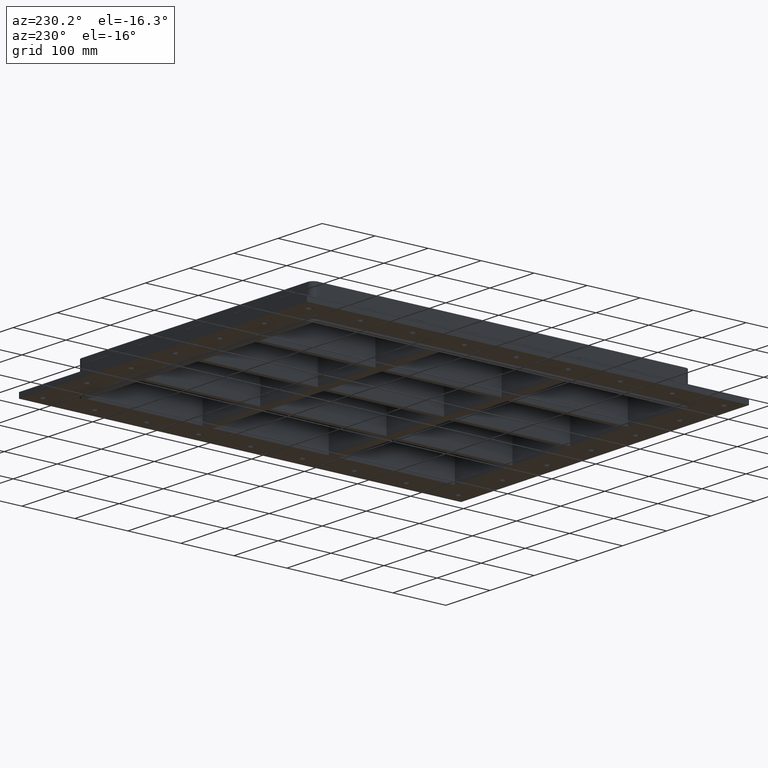
[diagram: clean part render]
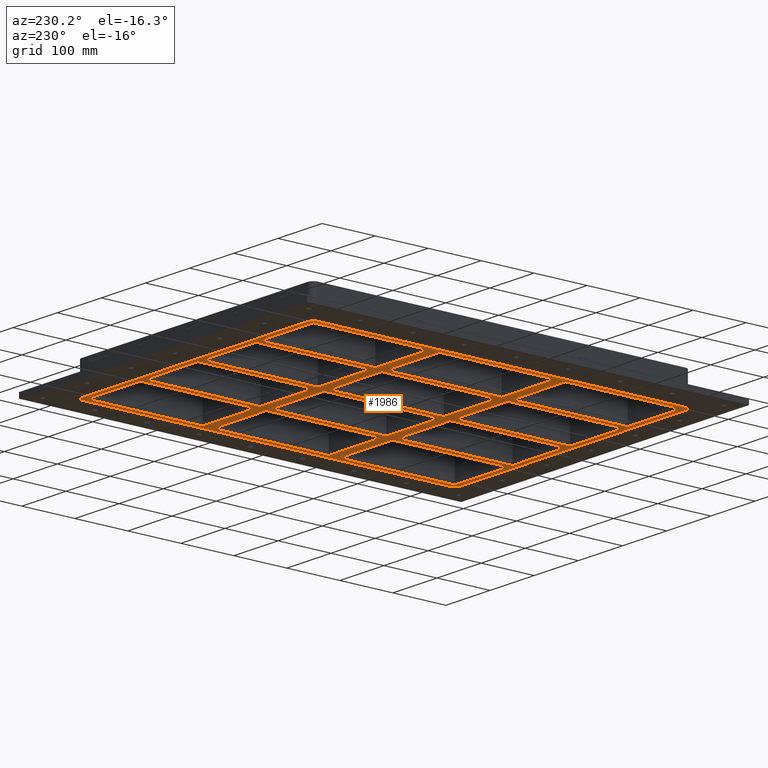
[diagram: same view with one face highlighted and labeled with its STEP entity id]
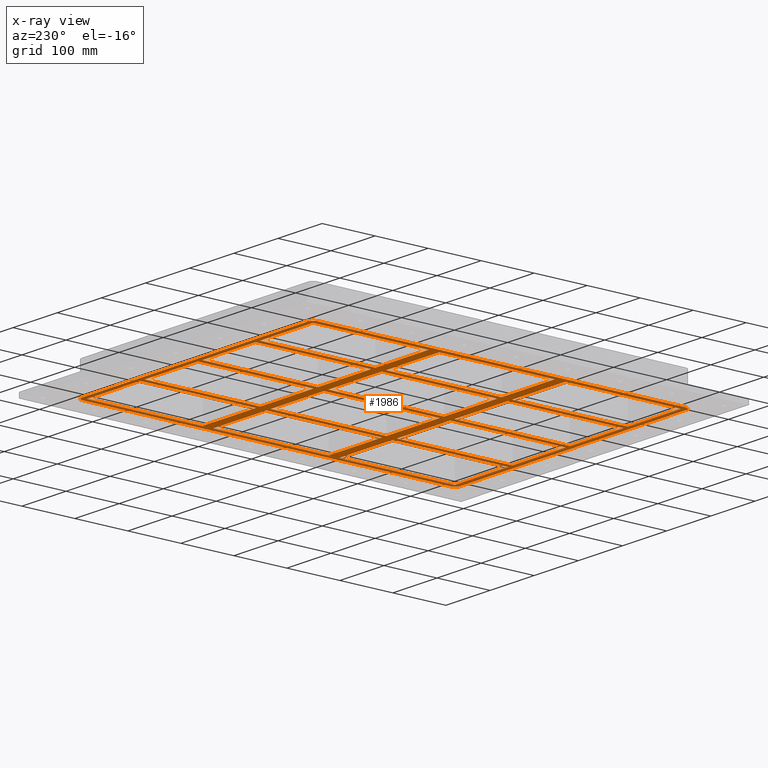
[diagram: x-ray of the same camera — body ghosted, the highlighted face saturated]
A machine part, auxiliary view. The second image highlights one B-rep face of the part: STEP entity #1986.
The next image is the same camera in x-ray: the body ghosted, the highlighted face saturated — about 0% of this face is hidden behind the body in this view.
In plain terms, the highlighted planar face has unit normal (0, 0, 1).
Its self-contained STEP definition (entity closure, byte-faithful):
#1314=CARTESIAN_POINT('',(256.00000000000011,-356.99999999999994,-30.0));
#1315=VERTEX_POINT('',#1314);
#1322=CARTESIAN_POINT('',(266.00000000000011,-346.99999999999994,-30.0));
#1323=VERTEX_POINT('',#1322);
#1324=CARTESIAN_POINT('',(256.00000000000011,-346.99999999999994,-30.0));
#1325=DIRECTION('',(0.0,0.0,1.0));
#1326=DIRECTION('',(0.707106781186547,-0.707106781186547,0.0));
#1327=AXIS2_PLACEMENT_3D('',#1324,#1325,#1326);
#1328=CIRCLE('',#1327,9.999999999999998);
#1329=EDGE_CURVE('',#1315,#1323,#1328,.T.);
#1378=CARTESIAN_POINT('',(-255.99999999999969,-356.99999999999994,-30.0));
#1379=VERTEX_POINT('',#1378);
#1386=CARTESIAN_POINT('',(256.00000000000006,-356.99999999999994,-30.0));
#1387=DIRECTION('',(-1.0,0.0,0.0));
#1388=VECTOR('',#1387,511.99999999999977);
#1389=LINE('',#1386,#1388);
#1390=EDGE_CURVE('',#1315,#1379,#1389,.T.);
#1426=CARTESIAN_POINT('',(-265.99999999999972,-346.99999999999989,-30.0));
#1427=VERTEX_POINT('',#1426);
#1434=CARTESIAN_POINT('',(-255.99999999999969,-346.99999999999989,-30.0));
#1435=DIRECTION('',(0.0,0.0,1.0));
#1436=DIRECTION('',(-0.707106781186547,-0.707106781186547,0.0));
#1437=AXIS2_PLACEMENT_3D('',#1434,#1435,#1436);
#1438=CIRCLE('',#1437,9.999999999999998);
#1439=EDGE_CURVE('',#1427,#1379,#1438,.T.);
#1476=CARTESIAN_POINT('',(-266.00000000000011,347.00000000000017,-30.0));
#1477=VERTEX_POINT('',#1476);
#1484=CARTESIAN_POINT('',(-265.99999999999972,-346.99999999999983,-30.0));
#1485=DIRECTION('',(0.0,1.0,0.0));
#1486=VECTOR('',#1485,694.0);
#1487=LINE('',#1484,#1486);
#1488=EDGE_CURVE('',#1427,#1477,#1487,.T.);
#1524=CARTESIAN_POINT('',(-256.00000000000006,357.00000000000017,-30.0));
#1525=VERTEX_POINT('',#1524);
#1532=CARTESIAN_POINT('',(-256.00000000000011,347.00000000000017,-30.0));
#1533=DIRECTION('',(0.0,0.0,1.0));
#1534=DIRECTION('',(-0.707106781186547,0.707106781186547,0.0));
#1535=AXIS2_PLACEMENT_3D('',#1532,#1533,#1534);
#1536=CIRCLE('',#1535,9.999999999999998);
#1537=EDGE_CURVE('',#1525,#1477,#1536,.T.);
#1543=CARTESIAN_POINT('',(6.843108E-014,1.228338E-013,-30.0));
#1544=DIRECTION('',(0.0,0.0,1.0));
#1545=DIRECTION('',(1.0,0.0,0.0));
#1546=AXIS2_PLACEMENT_3D('',#1543,#1544,#1545);
#1547=PLANE('',#1546);
#1548=ORIENTED_EDGE('',*,*,#1329,.F.);
#1549=ORIENTED_EDGE('',*,*,#1390,.T.);
#1550=ORIENTED_EDGE('',*,*,#1439,.F.);
#1551=ORIENTED_EDGE('',*,*,#1488,.T.);
#1552=ORIENTED_EDGE('',*,*,#1537,.F.);
#1553=CARTESIAN_POINT('',(255.99999999999997,357.00000000000011,-30.0));
#1554=VERTEX_POINT('',#1553);
#1555=CARTESIAN_POINT('',(-256.0,357.00000000000017,-30.0));
#1556=DIRECTION('',(1.0,0.0,0.0));
#1557=VECTOR('',#1556,512.0);
#1558=LINE('',#1555,#1557);
#1559=EDGE_CURVE('',#1525,#1554,#1558,.T.);
#1560=ORIENTED_EDGE('',*,*,#1559,.T.);
#1561=CARTESIAN_POINT('',(266.0,347.00000000000011,-30.0));
#1562=VERTEX_POINT('',#1561);
#1563=CARTESIAN_POINT('',(255.99999999999997,347.00000000000011,-30.0));
#1564=DIRECTION('',(0.0,0.0,1.0));
#1565=DIRECTION('',(0.707106781186547,0.707106781186547,0.0));
#1566=AXIS2_PLACEMENT_3D('',#1563,#1564,#1565);
#1567=CIRCLE('',#1566,9.999999999999998);
#1568=EDGE_CURVE('',#1562,#1554,#1567,.T.);
#1569=ORIENTED_EDGE('',*,*,#1568,.F.);
#1570=CARTESIAN_POINT('',(266.0,347.00000000000006,-30.0));
#1571=DIRECTION('',(0.0,-1.0,0.0));
#1572=VECTOR('',#1571,694.0);
#1573=LINE('',#1570,#1572);
#1574=EDGE_CURVE('',#1562,#1323,#1573,.T.);
#1575=ORIENTED_EDGE('',*,*,#1574,.T.);
#1576=EDGE_LOOP('',(#1548,#1549,#1550,#1551,#1552,#1560,#1569,#1575));
#1577=FACE_OUTER_BOUND('',#1576,.T.);
#1578=CARTESIAN_POINT('',(135.49999999999989,347.00000000000017,-30.0));
#1579=VERTEX_POINT('',#1578);
#1580=CARTESIAN_POINT('',(135.49999999999994,129.00000000000011,-30.0));
#1581=VERTEX_POINT('',#1580);
#1582=CARTESIAN_POINT('',(135.49999999999989,347.00000000000023,-30.0));
#1583=DIRECTION('',(0.0,-1.0,0.0));
#1584=VECTOR('',#1583,218.00000000000011);
#1585=LINE('',#1582,#1584);
#1586=EDGE_CURVE('',#1579,#1581,#1585,.T.);
#1587=ORIENTED_EDGE('',*,*,#1586,.T.);
#1588=CARTESIAN_POINT('',(255.99999999999994,129.00000000000011,-30.0));
#1589=VERTEX_POINT('',#1588);
#1590=CARTESIAN_POINT('',(135.49999999999994,129.00000000000011,-30.0));
#1591=DIRECTION('',(1.0,0.0,0.0));
#1592=VECTOR('',#1591,120.5);
#1593=LINE('',#1590,#1592);
#1594=EDGE_CURVE('',#1581,#1589,#1593,.T.);
#1595=ORIENTED_EDGE('',*,*,#1594,.T.);
#1596=CARTESIAN_POINT('',(255.99999999999991,347.00000000000017,-30.0));
#1597=VERTEX_POINT('',#1596);
#1598=CARTESIAN_POINT('',(255.99999999999994,129.00000000000014,-30.0));
#1599=DIRECTION('',(0.0,1.0,0.0));
#1600=VECTOR('',#1599,218.00000000000003);
#1601=LINE('',#1598,#1600);
#1602=EDGE_CURVE('',#1589,#1597,#1601,.T.);
#1603=ORIENTED_EDGE('',*,*,#1602,.T.);
#1604=CARTESIAN_POINT('',(255.99999999999989,347.00000000000017,-30.0));
#1605=DIRECTION('',(-1.0,0.0,0.0));
#1606=VECTOR('',#1605,120.5);
#1607=LINE('',#1604,#1606);
#1608=EDGE_CURVE('',#1597,#1579,#1607,.T.);
#1609=ORIENTED_EDGE('',*,*,#1608,.T.);
#1610=EDGE_LOOP('',(#1587,#1595,#1603,#1609));
#1611=FACE_BOUND('',#1610,.T.);
#1612=CARTESIAN_POINT('',(135.50000000000003,109.00000000000013,-30.0));
#1613=VERTEX_POINT('',#1612);
#1614=CARTESIAN_POINT('',(135.50000000000009,-108.99999999999989,-30.0));
#1615=VERTEX_POINT('',#1614);
#1616=CARTESIAN_POINT('',(135.50000000000003,109.00000000000011,-30.0));
#1617=DIRECTION('',(0.0,-1.0,0.0));
#1618=VECTOR('',#1617,218.0);
#1619=LINE('',#1616,#1618);
#1620=EDGE_CURVE('',#1613,#1615,#1619,.T.);
#1621=ORIENTED_EDGE('',*,*,#1620,.T.);
#1622=CARTESIAN_POINT('',(256.00000000000011,-108.99999999999989,-30.0));
#1623=VERTEX_POINT('',#1622);
#1624=CARTESIAN_POINT('',(135.50000000000011,-108.99999999999989,-30.0));
#1625=DIRECTION('',(1.0,0.0,0.0));
#1626=VECTOR('',#1625,120.5);
#1627=LINE('',#1624,#1626);
#1628=EDGE_CURVE('',#1615,#1623,#1627,.T.);
#1629=ORIENTED_EDGE('',*,*,#1628,.T.);
#1630=CARTESIAN_POINT('',(256.00000000000006,109.00000000000013,-30.0));
#1631=VERTEX_POINT('',#1630);
#1632=CARTESIAN_POINT('',(256.00000000000011,-108.99999999999986,-30.0));
#1633=DIRECTION('',(0.0,1.0,0.0));
#1634=VECTOR('',#1633,218.0);
#1635=LINE('',#1632,#1634);
#1636=EDGE_CURVE('',#1623,#1631,#1635,.T.);
#1637=ORIENTED_EDGE('',*,*,#1636,.T.);
#1638=CARTESIAN_POINT('',(256.00000000000006,109.00000000000013,-30.0));
#1639=DIRECTION('',(-1.0,0.0,0.0));
#1640=VECTOR('',#1639,120.50000000000006);
#1641=LINE('',#1638,#1640);
#1642=EDGE_CURVE('',#1631,#1613,#1641,.T.);
#1643=ORIENTED_EDGE('',*,*,#1642,.T.);
#1644=EDGE_LOOP('',(#1621,#1629,#1637,#1643));
#1645=FACE_BOUND('',#1644,.T.);
#1646=CARTESIAN_POINT('',(135.50000000000017,-128.99999999999989,-30.0));
#1647=VERTEX_POINT('',#1646);
#1648=CARTESIAN_POINT('',(135.50000000000023,-346.99999999999989,-30.0));
#1649=VERTEX_POINT('',#1648);
#1650=CARTESIAN_POINT('',(135.50000000000014,-128.99999999999989,-30.0));
#1651=DIRECTION('',(0.0,-1.0,0.0));
#1652=VECTOR('',#1651,218.0);
#1653=LINE('',#1650,#1652);
#1654=EDGE_CURVE('',#1647,#1649,#1653,.T.);
#1655=ORIENTED_EDGE('',*,*,#1654,.T.);
#1656=CARTESIAN_POINT('',(256.00000000000023,-346.99999999999989,-30.0));
#1657=VERTEX_POINT('',#1656);
#1658=CARTESIAN_POINT('',(135.50000000000023,-346.99999999999989,-30.0));
#1659=DIRECTION('',(1.0,0.0,0.0));
#1660=VECTOR('',#1659,120.5);
#1661=LINE('',#1658,#1660);
#1662=EDGE_CURVE('',#1649,#1657,#1661,.T.);
#1663=ORIENTED_EDGE('',*,*,#1662,.T.);
#1664=CARTESIAN_POINT('',(256.00000000000017,-128.99999999999989,-30.0));
#1665=VERTEX_POINT('',#1664);
#1666=CARTESIAN_POINT('',(256.00000000000023,-346.99999999999989,-30.0));
#1667=DIRECTION('',(0.0,1.0,0.0));
#1668=VECTOR('',#1667,218.0);
#1669=LINE('',#1666,#1668);
#1670=EDGE_CURVE('',#1657,#1665,#1669,.T.);
#1671=ORIENTED_EDGE('',*,*,#1670,.T.);
#1672=CARTESIAN_POINT('',(256.00000000000017,-128.99999999999989,-30.0));
#1673=DIRECTION('',(-1.0,0.0,0.0));
#1674=VECTOR('',#1673,120.5);
#1675=LINE('',#1672,#1674);
#1676=EDGE_CURVE('',#1665,#1647,#1675,.T.);
#1677=ORIENTED_EDGE('',*,*,#1676,.T.);
#1678=EDGE_LOOP('',(#1655,#1663,#1671,#1677));
#1679=FACE_BOUND('',#1678,.T.);
#1680=CARTESIAN_POINT('',(4.999999999999869,347.00000000000017,-30.0));
#1681=VERTEX_POINT('',#1680);
#1682=CARTESIAN_POINT('',(4.999999999999941,129.00000000000011,-30.0));
#1683=VERTEX_POINT('',#1682);
#1684=CARTESIAN_POINT('',(4.999999999999869,347.00000000000017,-30.0));
#1685=DIRECTION('',(0.0,-1.0,0.0));
#1686=VECTOR('',#1685,218.00000000000006);
#1687=LINE('',#1684,#1686);
#1688=EDGE_CURVE('',#1681,#1683,#1687,.T.);
#1689=ORIENTED_EDGE('',*,*,#1688,.T.);
#1690=CARTESIAN_POINT('',(125.49999999999996,129.00000000000011,-30.0));
#1691=VERTEX_POINT('',#1690);
#1692=CARTESIAN_POINT('',(4.999999999999943,129.00000000000011,-30.0));
#1693=DIRECTION('',(1.0,0.0,0.0));
#1694=VECTOR('',#1693,120.50000000000001);
#1695=LINE('',#1692,#1694);
#1696=EDGE_CURVE('',#1683,#1691,#1695,.T.);
#1697=ORIENTED_EDGE('',*,*,#1696,.T.);
#1698=CARTESIAN_POINT('',(125.49999999999991,347.00000000000017,-30.0));
#1699=VERTEX_POINT('',#1698);
#1700=CARTESIAN_POINT('',(125.49999999999996,129.00000000000014,-30.0));
#1701=DIRECTION('',(0.0,1.0,0.0));
#1702=VECTOR('',#1701,218.00000000000003);
#1703=LINE('',#1700,#1702);
#1704=EDGE_CURVE('',#1691,#1699,#1703,.T.);
#1705=ORIENTED_EDGE('',*,*,#1704,.T.);
#1706=CARTESIAN_POINT('',(125.49999999999993,347.00000000000017,-30.0));
#1707=DIRECTION('',(-1.0,0.0,0.0));
#1708=VECTOR('',#1707,120.50000000000006);
#1709=LINE('',#1706,#1708);
#1710=EDGE_CURVE('',#1699,#1681,#1709,.T.);
#1711=ORIENTED_EDGE('',*,*,#1710,.T.);
#1712=EDGE_LOOP('',(#1689,#1697,#1705,#1711));
#1713=FACE_BOUND('',#1712,.T.);
#1714=CARTESIAN_POINT('',(4.999999999999976,109.00000000000013,-30.0));
#1715=VERTEX_POINT('',#1714);
#1716=CARTESIAN_POINT('',(5.000000000000048,-108.99999999999989,-30.0));
#1717=VERTEX_POINT('',#1716);
#1718=CARTESIAN_POINT('',(4.999999999999977,109.00000000000011,-30.0));
#1719=DIRECTION('',(0.0,-1.0,0.0));
#1720=VECTOR('',#1719,218.0);
#1721=LINE('',#1718,#1720);
#1722=EDGE_CURVE('',#1715,#1717,#1721,.T.);
#1723=ORIENTED_EDGE('',*,*,#1722,.T.);
#1724=CARTESIAN_POINT('',(125.50000000000006,-108.99999999999989,-30.0));
#1725=VERTEX_POINT('',#1724);
#1726=CARTESIAN_POINT('',(5.000000000000043,-108.99999999999989,-30.0));
#1727=DIRECTION('',(1.0,0.0,0.0));
#1728=VECTOR('',#1727,120.50000000000001);
#1729=LINE('',#1726,#1728);
#1730=EDGE_CURVE('',#1717,#1725,#1729,.T.);
#1731=ORIENTED_EDGE('',*,*,#1730,.T.);
#1732=CARTESIAN_POINT('',(125.50000000000003,109.00000000000013,-30.0));
#1733=VERTEX_POINT('',#1732);
#1734=CARTESIAN_POINT('',(125.50000000000007,-108.99999999999986,-30.0));
#1735=DIRECTION('',(0.0,1.0,0.0));
#1736=VECTOR('',#1735,218.0);
#1737=LINE('',#1734,#1736);
#1738=EDGE_CURVE('',#1725,#1733,#1737,.T.);
#1739=ORIENTED_EDGE('',*,*,#1738,.T.);
#1740=CARTESIAN_POINT('',(125.50000000000003,109.00000000000013,-30.0));
#1741=DIRECTION('',(-1.0,0.0,0.0));
#1742=VECTOR('',#1741,120.50000000000006);
#1743=LINE('',#1740,#1742);
#1744=EDGE_CURVE('',#1733,#1715,#1743,.T.);
#1745=ORIENTED_EDGE('',*,*,#1744,.T.);
#1746=EDGE_LOOP('',(#1723,#1731,#1739,#1745));
#1747=FACE_BOUND('',#1746,.T.);
#1748=CARTESIAN_POINT('',(5.000000000000119,-128.99999999999989,-30.0));
#1749=VERTEX_POINT('',#1748);
#1750=CARTESIAN_POINT('',(5.00000000000019,-346.99999999999989,-30.0));
#1751=VERTEX_POINT('',#1750);
#1752=CARTESIAN_POINT('',(5.000000000000119,-128.99999999999989,-30.0));
#1753=DIRECTION('',(0.0,-1.0,0.0));
#1754=VECTOR('',#1753,218.0);
#1755=LINE('',#1752,#1754);
#1756=EDGE_CURVE('',#1749,#1751,#1755,.T.);
#1757=ORIENTED_EDGE('',*,*,#1756,.T.);
#1758=CARTESIAN_POINT('',(125.5000000000002,-346.99999999999989,-30.0));
#1759=VERTEX_POINT('',#1758);
#1760=CARTESIAN_POINT('',(5.000000000000185,-346.99999999999989,-30.0));
#1761=DIRECTION('',(1.0,0.0,0.0));
#1762=VECTOR('',#1761,120.50000000000001);
#1763=LINE('',#1760,#1762);
#1764=EDGE_CURVE('',#1751,#1759,#1763,.T.);
#1765=ORIENTED_EDGE('',*,*,#1764,.T.);
#1766=CARTESIAN_POINT('',(125.50000000000017,-128.99999999999989,-30.0));
#1767=VERTEX_POINT('',#1766);
#1768=CARTESIAN_POINT('',(125.50000000000018,-346.99999999999989,-30.0));
#1769=DIRECTION('',(0.0,1.0,0.0));
#1770=VECTOR('',#1769,218.0);
#1771=LINE('',#1768,#1770);
#1772=EDGE_CURVE('',#1759,#1767,#1771,.T.);
#1773=ORIENTED_EDGE('',*,*,#1772,.T.);
#1774=CARTESIAN_POINT('',(125.50000000000018,-128.99999999999989,-30.0));
#1775=DIRECTION('',(-1.0,0.0,0.0));
#1776=VECTOR('',#1775,120.50000000000007);
#1777=LINE('',#1774,#1776);
#1778=EDGE_CURVE('',#1767,#1749,#1777,.T.);
#1779=ORIENTED_EDGE('',*,*,#1778,.T.);
#1780=EDGE_LOOP('',(#1757,#1765,#1773,#1779));
#1781=FACE_BOUND('',#1780,.T.);
#1782=CARTESIAN_POINT('',(-125.50000000000017,347.00000000000017,-30.0));
#1783=VERTEX_POINT('',#1782);
#1784=CARTESIAN_POINT('',(-125.5000000000001,129.00000000000011,-30.0));
#1785=VERTEX_POINT('',#1784);
#1786=CARTESIAN_POINT('',(-125.50000000000017,347.00000000000017,-30.0));
#1787=DIRECTION('',(0.0,-1.0,0.0));
#1788=VECTOR('',#1787,218.00000000000006);
#1789=LINE('',#1786,#1788);
#1790=EDGE_CURVE('',#1783,#1785,#1789,.T.);
#1791=ORIENTED_EDGE('',*,*,#1790,.T.);
#1792=CARTESIAN_POINT('',(-5.000000000000094,129.00000000000011,-30.0));
#1793=VERTEX_POINT('',#1792);
#1794=CARTESIAN_POINT('',(-125.5000000000001,129.00000000000011,-30.0));
#1795=DIRECTION('',(1.0,0.0,0.0));
#1796=VECTOR('',#1795,120.5);
#1797=LINE('',#1794,#1796);
#1798=EDGE_CURVE('',#1785,#1793,#1797,.T.);
#1799=ORIENTED_EDGE('',*,*,#1798,.T.);
#1800=CARTESIAN_POINT('',(-5.00000000000013,347.00000000000017,-30.0));
#1801=VERTEX_POINT('',#1800);
#1802=CARTESIAN_POINT('',(-5.000000000000095,129.00000000000014,-30.0));
#1803=DIRECTION('',(0.0,1.0,0.0));
#1804=VECTOR('',#1803,218.00000000000003);
#1805=LINE('',#1802,#1804);
#1806=EDGE_CURVE('',#1793,#1801,#1805,.T.);
#1807=ORIENTED_EDGE('',*,*,#1806,.T.);
#1808=CARTESIAN_POINT('',(-5.000000000000135,347.00000000000017,-30.0));
#1809=DIRECTION('',(-1.0,0.0,0.0));
#1810=VECTOR('',#1809,120.50000000000003);
#1811=LINE('',#1808,#1810);
#1812=EDGE_CURVE('',#1801,#1783,#1811,.T.);
#1813=ORIENTED_EDGE('',*,*,#1812,.T.);
#1814=EDGE_LOOP('',(#1791,#1799,#1807,#1813));
#1815=FACE_BOUND('',#1814,.T.);
#1816=CARTESIAN_POINT('',(-125.50000000000003,109.00000000000013,-30.0));
#1817=VERTEX_POINT('',#1816);
#1818=CARTESIAN_POINT('',(-125.49999999999996,-108.99999999999989,-30.0));
#1819=VERTEX_POINT('',#1818);
#1820=CARTESIAN_POINT('',(-125.50000000000003,109.00000000000011,-30.0));
#1821=DIRECTION('',(0.0,-1.0,0.0));
#1822=VECTOR('',#1821,218.0);
#1823=LINE('',#1820,#1822);
#1824=EDGE_CURVE('',#1817,#1819,#1823,.T.);
#1825=ORIENTED_EDGE('',*,*,#1824,.T.);
#1826=CARTESIAN_POINT('',(-4.999999999999953,-108.99999999999989,-30.0));
#1827=VERTEX_POINT('',#1826);
#1828=CARTESIAN_POINT('',(-125.49999999999994,-108.99999999999989,-30.0));
#1829=DIRECTION('',(1.0,0.0,0.0));
#1830=VECTOR('',#1829,120.49999999999999);
#1831=LINE('',#1828,#1830);
#1832=EDGE_CURVE('',#1819,#1827,#1831,.T.);
#1833=ORIENTED_EDGE('',*,*,#1832,.T.);
#1834=CARTESIAN_POINT('',(-4.999999999999989,109.00000000000013,-30.0));
#1835=VERTEX_POINT('',#1834);
#1836=CARTESIAN_POINT('',(-4.999999999999953,-108.99999999999987,-30.0));
#1837=DIRECTION('',(0.0,1.0,0.0));
#1838=VECTOR('',#1837,218.0);
#1839=LINE('',#1836,#1838);
#1840=EDGE_CURVE('',#1827,#1835,#1839,.T.);
#1841=ORIENTED_EDGE('',*,*,#1840,.T.);
#1842=CARTESIAN_POINT('',(-4.999999999999993,109.00000000000013,-30.0));
#1843=DIRECTION('',(-1.0,0.0,0.0));
#1844=VECTOR('',#1843,120.50000000000003);
#1845=LINE('',#1842,#1844);
#1846=EDGE_CURVE('',#1835,#1817,#1845,.T.);
#1847=ORIENTED_EDGE('',*,*,#1846,.T.);
#1848=EDGE_LOOP('',(#1825,#1833,#1841,#1847));
#1849=FACE_BOUND('',#1848,.T.);
#1850=CARTESIAN_POINT('',(-125.4999999999999,-128.99999999999989,-30.0));
#1851=VERTEX_POINT('',#1850);
#1852=CARTESIAN_POINT('',(-125.49999999999983,-346.99999999999989,-30.0));
#1853=VERTEX_POINT('',#1852);
#1854=CARTESIAN_POINT('',(-125.4999999999999,-128.99999999999989,-30.0));
#1855=DIRECTION('',(0.0,-1.0,0.0));
#1856=VECTOR('',#1855,218.0);
#1857=LINE('',#1854,#1856);
#1858=EDGE_CURVE('',#1851,#1853,#1857,.T.);
#1859=ORIENTED_EDGE('',*,*,#1858,.T.);
#1860=CARTESIAN_POINT('',(-4.999999999999829,-346.99999999999989,-30.0));
#1861=VERTEX_POINT('',#1860);
#1862=CARTESIAN_POINT('',(-125.49999999999984,-346.99999999999989,-30.0));
#1863=DIRECTION('',(1.0,0.0,0.0));
#1864=VECTOR('',#1863,120.50000000000001);
#1865=LINE('',#1862,#1864);
#1866=EDGE_CURVE('',#1853,#1861,#1865,.T.);
#1867=ORIENTED_EDGE('',*,*,#1866,.T.);
#1868=CARTESIAN_POINT('',(-4.999999999999864,-128.99999999999989,-30.0));
#1869=VERTEX_POINT('',#1868);
#1870=CARTESIAN_POINT('',(-4.999999999999829,-346.99999999999989,-30.0));
#1871=DIRECTION('',(0.0,1.0,0.0));
#1872=VECTOR('',#1871,218.0);
#1873=LINE('',#1870,#1872);
#1874=EDGE_CURVE('',#1861,#1869,#1873,.T.);
#1875=ORIENTED_EDGE('',*,*,#1874,.T.);
#1876=CARTESIAN_POINT('',(-4.999999999999865,-128.99999999999989,-30.0));
#1877=DIRECTION('',(-1.0,0.0,0.0));
#1878=VECTOR('',#1877,120.50000000000003);
#1879=LINE('',#1876,#1878);
#1880=EDGE_CURVE('',#1869,#1851,#1879,.T.);
#1881=ORIENTED_EDGE('',*,*,#1880,.T.);
#1882=EDGE_LOOP('',(#1859,#1867,#1875,#1881));
#1883=FACE_BOUND('',#1882,.T.);
#1884=CARTESIAN_POINT('',(-256.00000000000017,347.00000000000017,-30.0));
#1885=VERTEX_POINT('',#1884);
#1886=CARTESIAN_POINT('',(-256.00000000000011,129.00000000000011,-30.0));
#1887=VERTEX_POINT('',#1886);
#1888=CARTESIAN_POINT('',(-256.00000000000023,347.00000000000011,-30.0));
#1889=DIRECTION('',(0.0,-1.0,0.0));
#1890=VECTOR('',#1889,218.0);
#1891=LINE('',#1888,#1890);
#1892=EDGE_CURVE('',#1885,#1887,#1891,.T.);
#1893=ORIENTED_EDGE('',*,*,#1892,.T.);
#1894=CARTESIAN_POINT('',(-135.50000000000009,129.00000000000011,-30.0));
#1895=VERTEX_POINT('',#1894);
#1896=CARTESIAN_POINT('',(-256.00000000000011,129.00000000000011,-30.0));
#1897=DIRECTION('',(1.0,0.0,0.0));
#1898=VECTOR('',#1897,120.50000000000006);
#1899=LINE('',#1896,#1898);
#1900=EDGE_CURVE('',#1887,#1895,#1899,.T.);
#1901=ORIENTED_EDGE('',*,*,#1900,.T.);
#1902=CARTESIAN_POINT('',(-135.50000000000011,347.00000000000017,-30.0));
#1903=VERTEX_POINT('',#1902);
#1904=CARTESIAN_POINT('',(-135.50000000000009,129.00000000000014,-30.0));
#1905=DIRECTION('',(0.0,1.0,0.0));
#1906=VECTOR('',#1905,218.00000000000003);
#1907=LINE('',#1904,#1906);
#1908=EDGE_CURVE('',#1895,#1903,#1907,.T.);
#1909=ORIENTED_EDGE('',*,*,#1908,.T.);
#1910=CARTESIAN_POINT('',(-135.50000000000011,347.00000000000017,-30.0));
#1911=DIRECTION('',(-1.0,0.0,0.0));
#1912=VECTOR('',#1911,120.50000000000011);
#1913=LINE('',#1910,#1912);
#1914=EDGE_CURVE('',#1903,#1885,#1913,.T.);
#1915=ORIENTED_EDGE('',*,*,#1914,.T.);
#1916=EDGE_LOOP('',(#1893,#1901,#1909,#1915));
#1917=FACE_BOUND('',#1916,.T.);
#1918=CARTESIAN_POINT('',(-256.00000000000006,109.00000000000013,-30.0));
#1919=VERTEX_POINT('',#1918);
#1920=CARTESIAN_POINT('',(-255.99999999999997,-108.99999999999989,-30.0));
#1921=VERTEX_POINT('',#1920);
#1922=CARTESIAN_POINT('',(-256.00000000000006,109.00000000000014,-30.0));
#1923=DIRECTION('',(0.0,-1.0,0.0));
#1924=VECTOR('',#1923,218.00000000000003);
#1925=LINE('',#1922,#1924);
#1926=EDGE_CURVE('',#1919,#1921,#1925,.T.);
#1927=ORIENTED_EDGE('',*,*,#1926,.T.);
#1928=CARTESIAN_POINT('',(-135.49999999999994,-108.99999999999989,-30.0));
#1929=VERTEX_POINT('',#1928);
#1930=CARTESIAN_POINT('',(-255.99999999999997,-108.99999999999989,-30.0));
#1931=DIRECTION('',(1.0,0.0,0.0));
#1932=VECTOR('',#1931,120.50000000000003);
#1933=LINE('',#1930,#1932);
#1934=EDGE_CURVE('',#1921,#1929,#1933,.T.);
#1935=ORIENTED_EDGE('',*,*,#1934,.T.);
#1936=CARTESIAN_POINT('',(-135.5,109.00000000000013,-30.0));
#1937=VERTEX_POINT('',#1936);
#1938=CARTESIAN_POINT('',(-135.49999999999994,-108.99999999999989,-30.0));
#1939=DIRECTION('',(0.0,1.0,0.0));
#1940=VECTOR('',#1939,218.0);
#1941=LINE('',#1938,#1940);
#1942=EDGE_CURVE('',#1929,#1937,#1941,.T.);
#1943=ORIENTED_EDGE('',*,*,#1942,.T.);
#1944=CARTESIAN_POINT('',(-135.5,109.00000000000013,-30.0));
#1945=DIRECTION('',(-1.0,0.0,0.0));
#1946=VECTOR('',#1945,120.50000000000006);
#1947=LINE('',#1944,#1946);
#1948=EDGE_CURVE('',#1937,#1919,#1947,.T.);
#1949=ORIENTED_EDGE('',*,*,#1948,.T.);
#1950=EDGE_LOOP('',(#1927,#1935,#1943,#1949));
#1951=FACE_BOUND('',#1950,.T.);
#1952=CARTESIAN_POINT('',(-135.49999999999983,-346.99999999999989,-30.0));
#1953=VERTEX_POINT('',#1952);
#1954=CARTESIAN_POINT('',(-135.49999999999986,-128.99999999999989,-30.0));
#1955=VERTEX_POINT('',#1954);
#1956=CARTESIAN_POINT('',(-135.4999999999998,-346.99999999999989,-30.0));
#1957=DIRECTION('',(0.0,1.0,0.0));
#1958=VECTOR('',#1957,218.0);
#1959=LINE('',#1956,#1958);
#1960=EDGE_CURVE('',#1953,#1955,#1959,.T.);
#1961=ORIENTED_EDGE('',*,*,#1960,.T.);
#1962=CARTESIAN_POINT('',(-255.99999999999991,-128.99999999999989,-30.0));
#1963=VERTEX_POINT('',#1962);
#1964=CARTESIAN_POINT('',(-135.49999999999986,-128.99999999999989,-30.0));
#1965=DIRECTION('',(-1.0,0.0,0.0));
#1966=VECTOR('',#1965,120.50000000000003);
#1967=LINE('',#1964,#1966);
#1968=EDGE_CURVE('',#1955,#1963,#1967,.T.);
#1969=ORIENTED_EDGE('',*,*,#1968,.T.);
#1970=CARTESIAN_POINT('',(-255.99999999999983,-346.99999999999989,-30.0));
#1971=VERTEX_POINT('',#1970);
#1972=CARTESIAN_POINT('',(-255.99999999999991,-128.99999999999989,-30.0));
#1973=DIRECTION('',(0.0,-1.0,0.0));
#1974=VECTOR('',#1973,218.0);
#1975=LINE('',#1972,#1974);
#1976=EDGE_CURVE('',#1963,#1971,#1975,.T.);
#1977=ORIENTED_EDGE('',*,*,#1976,.T.);
#1978=CARTESIAN_POINT('',(-255.99999999999983,-346.99999999999989,-30.0));
#1979=DIRECTION('',(1.0,0.0,0.0));
#1980=VECTOR('',#1979,120.5);
#1981=LINE('',#1978,#1980);
#1982=EDGE_CURVE('',#1971,#1953,#1981,.T.);
#1983=ORIENTED_EDGE('',*,*,#1982,.T.);
#1984=EDGE_LOOP('',(#1961,#1969,#1977,#1983));
#1985=FACE_BOUND('',#1984,.T.);
#1986=ADVANCED_FACE('',(#1577,#1611,#1645,#1679,#1713,#1747,#1781,#1815,#1849,#1883,#1917,#1951,#1985),#1547,.F.);